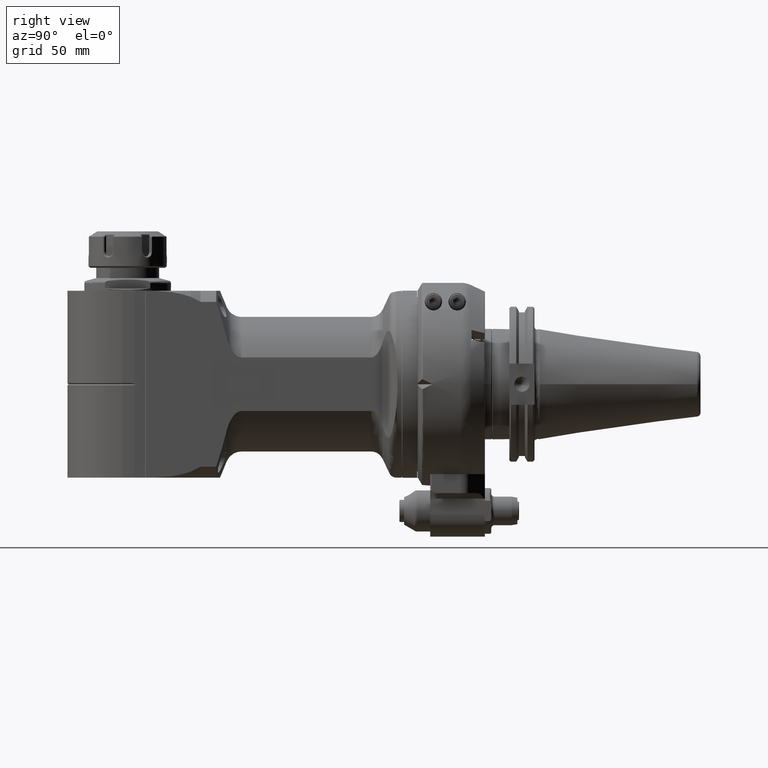
[diagram: clean part render]
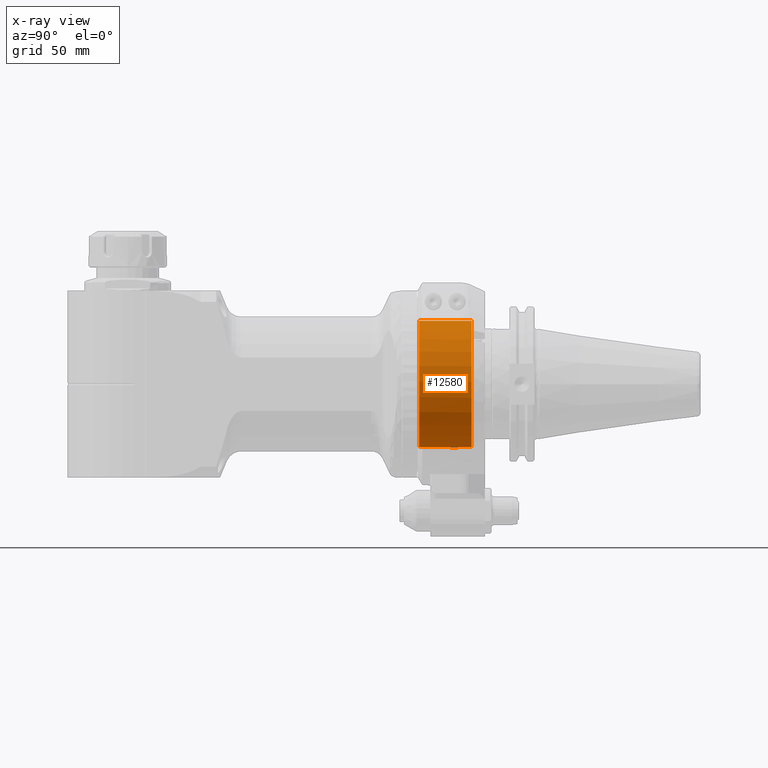
[diagram: x-ray — body ghosted, one internal face saturated and labeled with its STEP entity id]
A machine part, right view, then the same camera in x-ray: the body is ghosted and one INTERNAL B-rep face — a face not visible from any outside direction — is saturated and labeled: STEP entity #12580.
In plain terms, the highlighted cylindrical surface (partial cylindrical patch) has radius 40 mm, axis along (0, -1, 0).
Its self-contained STEP definition (entity closure, byte-faithful):
#479=CYLINDRICAL_SURFACE('',#13460,40.);
#800=CIRCLE('',#13450,40.);
#805=CIRCLE('',#13461,40.);
#806=CIRCLE('',#13462,40.);
#807=CIRCLE('',#13463,40.);
#1324=FACE_OUTER_BOUND('',#2002,.T.);
#2002=EDGE_LOOP('',(#8240,#8241,#8242,#8243,#8244,#8245,#8246,#8247));
#2949=LINE('',#18175,#3896);
#2957=LINE('',#18267,#3904);
#2970=LINE('',#18459,#3917);
#2974=LINE('',#18469,#3921);
#3896=VECTOR('',#14665,32.99999976923);
#3904=VECTOR('',#14695,32.99999976923);
#3917=VECTOR('',#14754,8.499999538462);
#3921=VECTOR('',#14764,8.499999538462);
#4866=VERTEX_POINT('',#18172);
#4867=VERTEX_POINT('',#18174);
#4881=VERTEX_POINT('',#18264);
#4882=VERTEX_POINT('',#18266);
#4901=VERTEX_POINT('',#18394);
#4911=VERTEX_POINT('',#18458);
#4913=VERTEX_POINT('',#18466);
#4914=VERTEX_POINT('',#18468);
#6217=EDGE_CURVE('',#4867,#4866,#2949,.T.);
#6238=EDGE_CURVE('',#4882,#4881,#2957,.T.);
#6263=EDGE_CURVE('',#4882,#4901,#800,.T.);
#6278=EDGE_CURVE('',#4911,#4901,#2970,.T.);
#6282=EDGE_CURVE('',#4867,#4881,#805,.T.);
#6283=EDGE_CURVE('',#4913,#4866,#806,.T.);
#6284=EDGE_CURVE('',#4913,#4914,#2974,.T.);
#6285=EDGE_CURVE('',#4911,#4914,#807,.T.);
#8240=ORIENTED_EDGE('',*,*,#6282,.F.);
#8241=ORIENTED_EDGE('',*,*,#6217,.T.);
#8242=ORIENTED_EDGE('',*,*,#6283,.F.);
#8243=ORIENTED_EDGE('',*,*,#6284,.T.);
#8244=ORIENTED_EDGE('',*,*,#6285,.F.);
#8245=ORIENTED_EDGE('',*,*,#6278,.T.);
#8246=ORIENTED_EDGE('',*,*,#6263,.F.);
#8247=ORIENTED_EDGE('',*,*,#6238,.T.);
#12580=ADVANCED_FACE('',(#1324),#479,.F.);
#13450=AXIS2_PLACEMENT_3D('',#18395,#14728,#14729);
#13460=AXIS2_PLACEMENT_3D('',#18464,#14758,#14759);
#13461=AXIS2_PLACEMENT_3D('',#18465,#14760,#14761);
#13462=AXIS2_PLACEMENT_3D('',#18467,#14762,#14763);
#13463=AXIS2_PLACEMENT_3D('',#18470,#14765,#14766);
#14665=DIRECTION('',(-1.,0.,0.));
#14695=DIRECTION('',(1.,0.,0.));
#14728=DIRECTION('center_axis',(1.,0.,0.));
#14729=DIRECTION('ref_axis',(0.,-0.999296627777989,-0.0374999961538496));
#14754=DIRECTION('',(-1.,0.,0.));
#14758=DIRECTION('center_axis',(1.,0.,0.));
#14759=DIRECTION('ref_axis',(0.,1.,-1.22464679914735E-16));
#14760=DIRECTION('center_axis',(-1.,0.,0.));
#14761=DIRECTION('ref_axis',(0.,1.,0.));
#14762=DIRECTION('center_axis',(1.,0.,0.));
#14763=DIRECTION('ref_axis',(0.,0.993651724700361,0.112499999999996));
#14764=DIRECTION('',(1.,0.,0.));
#14765=DIRECTION('center_axis',(1.,0.,0.));
#14766=DIRECTION('ref_axis',(0.,1.,0.));
#18172=CARTESIAN_POINT('',(-48.,-39.97186511112,1.499999846154));
#18174=CARTESIAN_POINT('',(-15.00000023077,-39.97186511112,1.499999846154));
#18175=CARTESIAN_POINT('',(-15.00000023077,-39.97186511112,1.499999846154));
#18264=CARTESIAN_POINT('',(-15.00000023077,-39.97186511112,-1.499999846154));
#18266=CARTESIAN_POINT('',(-48.,-39.97186511112,-1.499999846154));
#18267=CARTESIAN_POINT('',(-48.,-39.97186511112,-1.499999846154));
#18394=CARTESIAN_POINT('',(-48.,39.74606898801,-4.5));
#18395=CARTESIAN_POINT('Origin',(-48.,0.,0.));
#18458=CARTESIAN_POINT('',(-39.50000046154,39.74606898801,-4.5));
#18459=CARTESIAN_POINT('',(-39.50000046154,39.74606898801,-4.5));
#18464=CARTESIAN_POINT('Origin',(-35.07692307692,0.,0.));
#18465=CARTESIAN_POINT('Origin',(-15.00000023077,0.,0.));
#18466=CARTESIAN_POINT('',(-48.,39.74606898801,4.5));
#18467=CARTESIAN_POINT('Origin',(-48.,0.,0.));
#18468=CARTESIAN_POINT('',(-39.50000046154,39.74606898801,4.5));
#18469=CARTESIAN_POINT('',(-48.,39.74606898801,4.5));
#18470=CARTESIAN_POINT('Origin',(-39.50000046154,0.,0.));